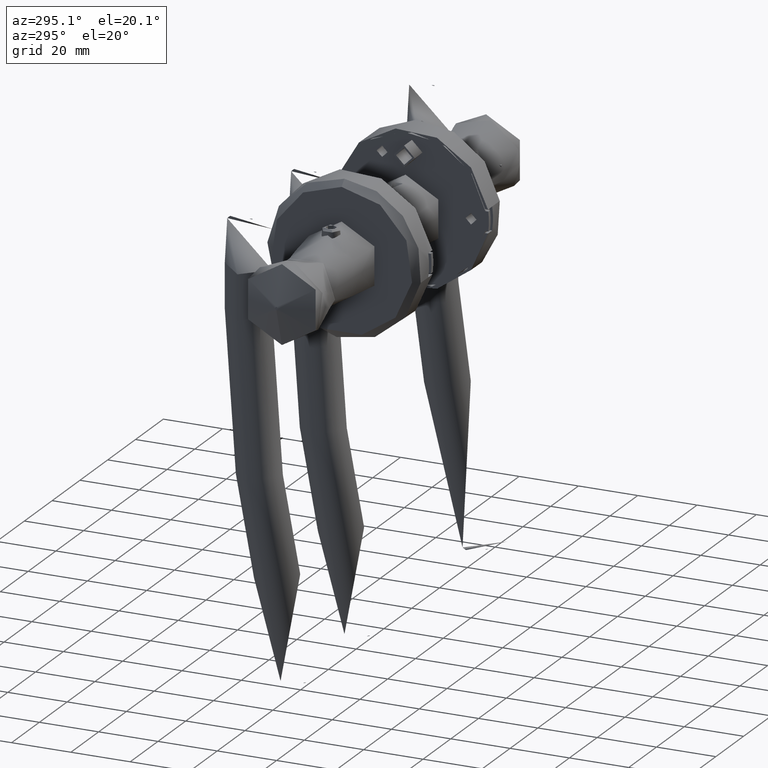
[diagram: clean part render]
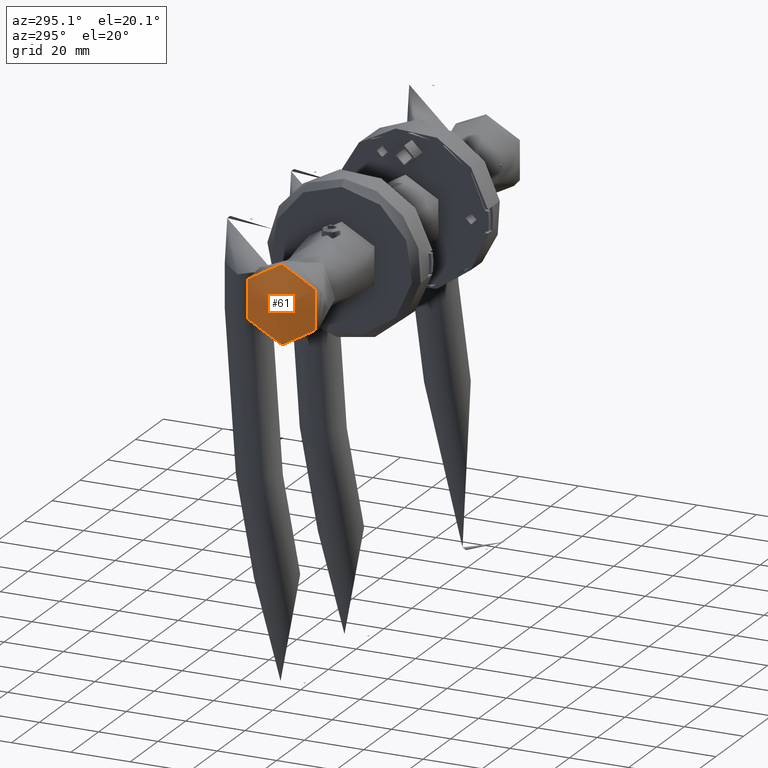
[diagram: same view with one face highlighted and labeled with its STEP entity id]
A machine part, auxiliary view. The second image highlights one B-rep face of the part: STEP entity #61.
In plain terms, the highlighted conical surface has half-angle 72.704 deg.
Its self-contained STEP definition (entity closure, byte-faithful):
#61 = ADVANCED_FACE ( 'NONE', ( #2683, #32196 ), #38507, .T. ) ;
#245 = DIRECTION ( 'NONE',  ( -1.107270303814984300E-016, -2.714712382271807800E-032, -1.000000000000000000 ) ) ;
#656 = EDGE_LOOP ( 'NONE', ( #26405 ) ) ;
#715 = CIRCLE ( 'NONE', #7613, 0.5946106345998958300 ) ;
#2683 = FACE_BOUND ( 'NONE', #47752, .T. ) ;
#7613 = AXIS2_PLACEMENT_3D ( 'NONE', #19840, #20155, #45624 ) ;
#8350 = DIRECTION ( 'NONE',  ( -1.000000000000000000, 0.0000000000000000000, 0.0000000000000000000 ) ) ;
#9684 = VERTEX_POINT ( 'NONE', #24697 ) ;
#12850 = AXIS2_PLACEMENT_3D ( 'NONE', #40640, #245, #22554 ) ;
#13930 = EDGE_CURVE ( 'NONE', #42064, #42064, #17971, .T. ) ;
#17971 = CIRCLE ( 'NONE', #20456, 13.15000000000000000 ) ;
#19367 = DIRECTION ( 'NONE',  ( -1.107270303814984300E-016, -2.714712382271807800E-032, -1.000000000000000000 ) ) ;
#19840 = CARTESIAN_POINT ( 'NONE',  ( -9.799999999999997200, 7.703719777548943400E-031, 46.90956492249431900 ) ) ;
#20155 = DIRECTION ( 'NONE',  ( -1.107270303814984300E-016, -2.714712382271807800E-032, -1.000000000000000000 ) ) ;
#20456 = AXIS2_PLACEMENT_3D ( 'NONE', #30493, #19367, #8350 ) ;
#22554 = DIRECTION ( 'NONE',  ( -1.000000000000000000, 0.0000000000000000000, 0.0000000000000000000 ) ) ;
#24697 = CARTESIAN_POINT ( 'NONE',  ( -10.39461063459989500, 7.703719777548943400E-031, 46.90956492249431900 ) ) ;
#26405 = ORIENTED_EDGE ( 'NONE', *, *, #13930, .F. ) ;
#27478 = CARTESIAN_POINT ( 'NONE',  ( -22.94999999999999900, 0.0000000000000000000, 43.00000000000000000 ) ) ;
#30493 = CARTESIAN_POINT ( 'NONE',  ( -9.799999999999997200, 0.0000000000000000000, 43.00000000000000000 ) ) ;
#32196 = FACE_OUTER_BOUND ( 'NONE', #656, .T. ) ;
#38507 = CONICAL_SURFACE ( 'NONE', #12850, 13.15000000000000000, 1.268927217943262500 ) ;
#39019 = EDGE_CURVE ( 'NONE', #9684, #9684, #715, .T. ) ;
#40640 = CARTESIAN_POINT ( 'NONE',  ( -9.799999999999997200, 0.0000000000000000000, 43.00000000000000000 ) ) ;
#42064 = VERTEX_POINT ( 'NONE', #27478 ) ;
#45624 = DIRECTION ( 'NONE',  ( -1.000000000000000000, 0.0000000000000000000, 0.0000000000000000000 ) ) ;
#47172 = ORIENTED_EDGE ( 'NONE', *, *, #39019, .T. ) ;
#47752 = EDGE_LOOP ( 'NONE', ( #47172 ) ) ;